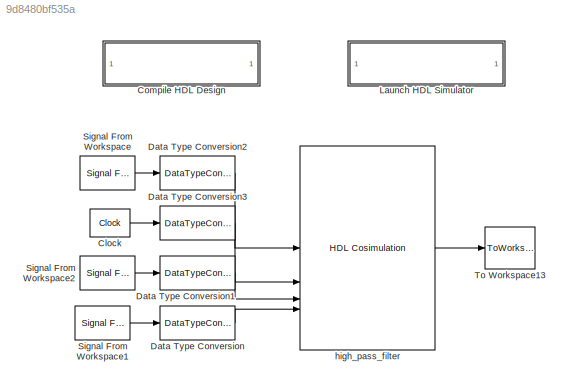
MODEL slx_9d8480bf535a
KIND model
CONFIG AbsTol = auto
CONFIG EnableMultiTasking = off
CONFIG FixedStep = auto
CONFIG MaxStep = auto
CONFIG MinStep = auto
CONFIG RelTol = 1e-3
CONFIG SampleTimeConstraint = Unconstrained
CONFIG SolverName = VariableStepAuto
CONFIG StartTime = 0.0
CONFIG StopTime = 1000
BLOCK [Reference] Clock  REF=simulink_extras/Flip Flops/Clock
  SourceBlock = simulink_extras/Flip Flops/Clock
  SourceType = Digital clock
BLOCK [SubSystem] Compile HDL Design
  OpenFcn = eval('compile_hdl_design_high_pass_filter');
BLOCK [DataTypeConversion] Data Type Conversion
  OutDataTypeStr = fixdt(1,16,9)
  RndMeth = Floor
  SaturateOnIntegerOverflow = off
BLOCK [DataTypeConversion] Data Type Conversion1
  OutDataTypeStr = boolean
  RndMeth = Floor
  SaturateOnIntegerOverflow = off
BLOCK [DataTypeConversion] Data Type Conversion2
  OutDataTypeStr = boolean
  RndMeth = Floor
  SaturateOnIntegerOverflow = off
BLOCK [DataTypeConversion] Data Type Conversion3
  OutDataTypeStr = boolean
  RndMeth = Floor
  SaturateOnIntegerOverflow = off
BLOCK [SubSystem] Launch HDL Simulator
  OpenFcn = eval('launch_hdl_simulator_high_pass_filter');
BLOCK [Reference] Signal From Workspace  REF=dspsrcs4/Signal From
Workspace
  SourceBlock = dspsrcs4/Signal From\nWorkspace
  SourceType = Signal From Workspace
BLOCK [Reference] Signal From Workspace1  REF=dspsrcs4/Signal From
Workspace
  SourceBlock = dspsrcs4/Signal From\nWorkspace
  SourceType = Signal From Workspace
BLOCK [Reference] Signal From Workspace2  REF=dspsrcs4/Signal From
Workspace
  SourceBlock = dspsrcs4/Signal From\nWorkspace
  SourceType = Signal From Workspace
BLOCK [ToWorkspace] To Workspace13
  MaxDataPoints = inf
  SampleTime = -1
  Save2DSignal = 2-D array (concatenate along first dimension)
  VariableName = S_HPF
BLOCK [Reference] high_pass_filter  REF=modelsimlib/HDL Cosimulation
  SourceBlock = modelsimlib/HDL Cosimulation
  SourceType = Simulink and ModelSim Cosimulation
LINE Clock:1 -> Data Type Conversion3:1
LINE Data Type Conversion1:1 -> high_pass_filter:3
LINE Data Type Conversion2:1 -> high_pass_filter:1
LINE Data Type Conversion3:1 -> high_pass_filter:2
LINE Data Type Conversion:1 -> high_pass_filter:4
LINE Signal From Workspace1:1 -> Data Type Conversion:1
LINE Signal From Workspace2:1 -> Data Type Conversion1:1
LINE Signal From Workspace:1 -> Data Type Conversion2:1
LINE high_pass_filter:1 -> To Workspace13:1
